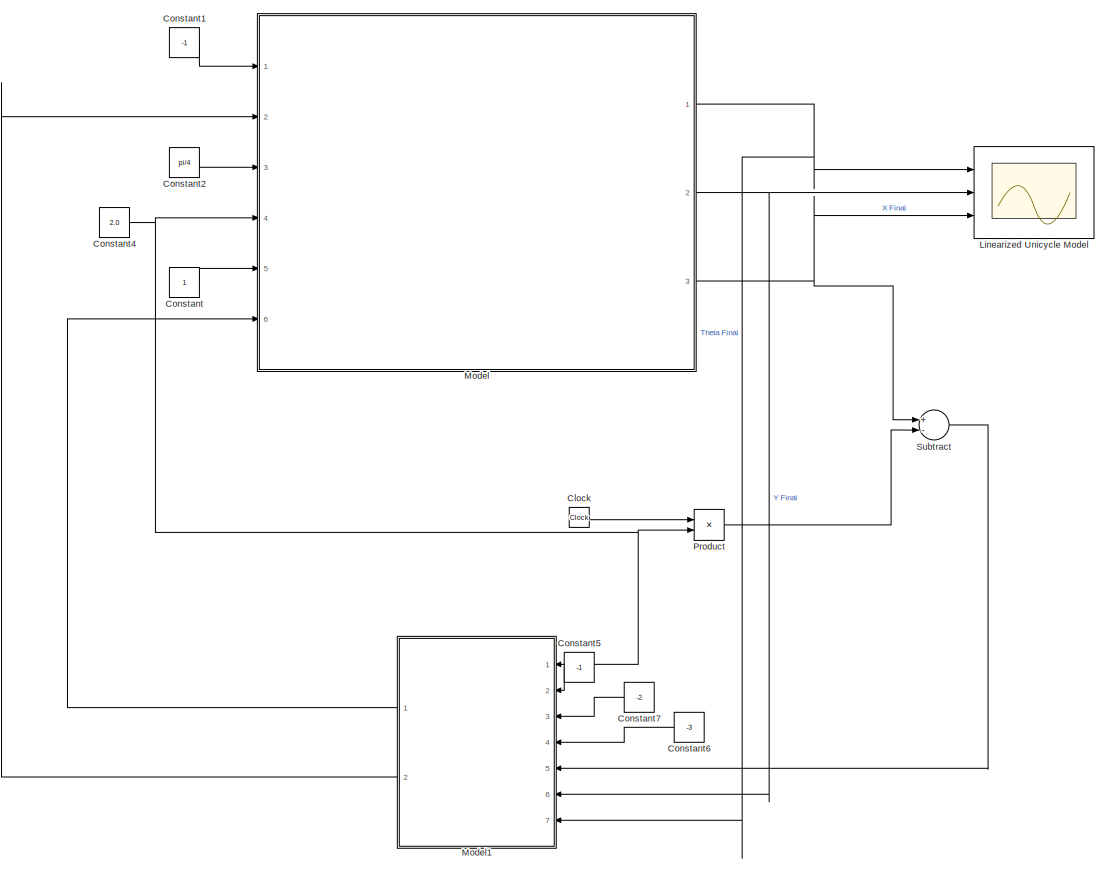
[diagram: root canvas - part 1/2, full width, top band]
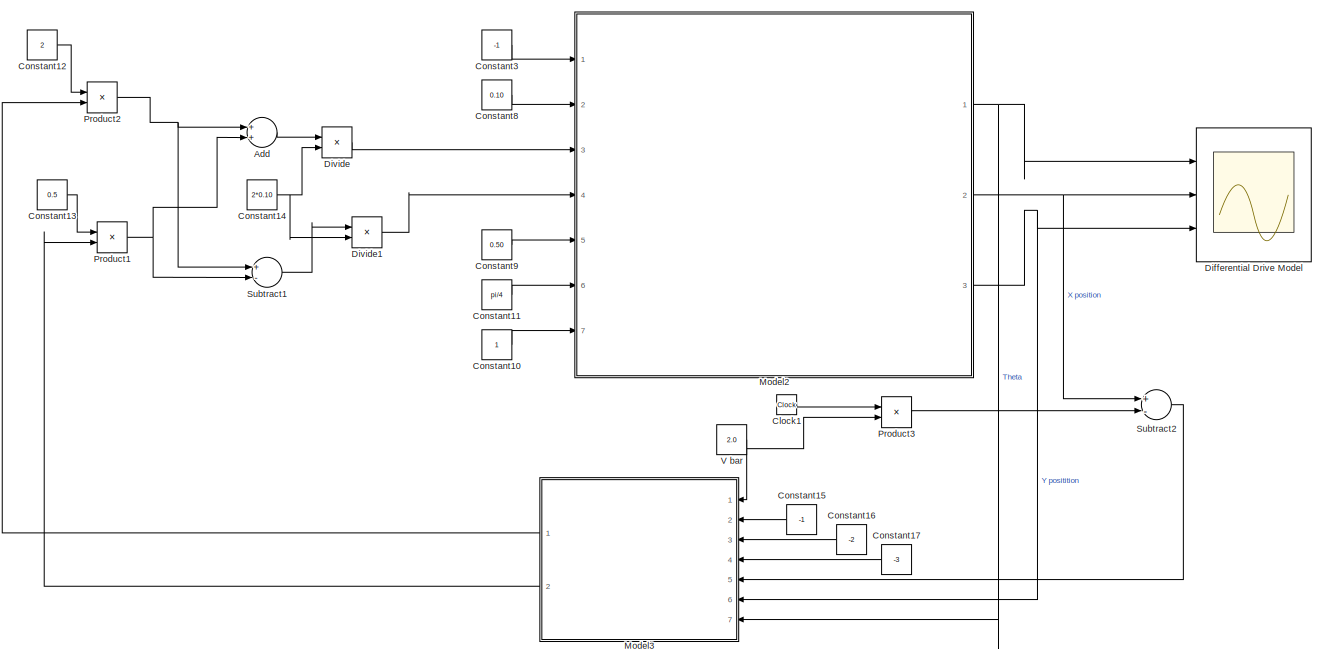
[diagram: root canvas - part 2/2, full width, bottom band]
MODEL slx_b41abf02a254
KIND model
CONFIG AbsTol = auto
CONFIG EnableMultiTasking = off
CONFIG FixedStep = auto
CONFIG MaxStep = auto
CONFIG MinStep = auto
CONFIG RelTol = 1e-3
CONFIG SampleTimeConstraint = Unconstrained
CONFIG Solver = VariableStepAuto
CONFIG SolverName = VariableStepAuto
CONFIG StartTime = 0.0
CONFIG StopTime = 10.0
BLOCK [Sum] Add
  InputSameDT = off
  OutDataTypeStr = Inherit: Inherit via internal rule
  Ports = [2, 1]
  SaturateOnIntegerOverflow = off
BLOCK [Clock] Clock
BLOCK [Clock] Clock1
BLOCK [Constant] Constant
BLOCK [Constant] Constant1
  Value = -1
BLOCK [Constant] Constant10
BLOCK [Constant] Constant11
  Value = pi/4
BLOCK [Constant] Constant12
  Value = 2
BLOCK [Constant] Constant13
  Value = 0.5
BLOCK [Constant] Constant14
  Value = 2*0.10
BLOCK [Constant] Constant15
  Value = -1
BLOCK [Constant] Constant16
  Value = -2
BLOCK [Constant] Constant17
  Value = -3
BLOCK [Constant] Constant2
  Value = pi/4
BLOCK [Constant] Constant3
  Value = -1
BLOCK [Constant] Constant4
  Value = 2.0
BLOCK [Constant] Constant5
  Value = -1
BLOCK [Constant] Constant6
  Value = -3
BLOCK [Constant] Constant7
  Value = -2
BLOCK [Constant] Constant8
  Value = 0.10
BLOCK [Constant] Constant9
  Value = 0.50
BLOCK [Scope] Differential Drive Model 
  NumInputPorts = 3
  Ports = [3]
  ScopeSpecificationString = Simulink.scopes.TimeScopeBlockCfg('CurrentConfiguration', extmgr.ConfigurationSet(extmgr.Configuration('Core','General UI',true),extmgr.Configuration('Core','Source UI',true),extmgr.Configuration('Sources','WiredSimulink',true,'DataLoggingVariableName','ScopeData1'),extmgr.Configuration('Visuals','Time Domain',true,'SerializedDisplays',{struct('MinYLimReal','-3.62499','MaxYLimReal','22.62491','YLa...<+1475ch>
BLOCK [Product] Divide
  InputSameDT = off
  Inputs = */
  OutDataTypeStr = Inherit: Inherit via internal rule
  Ports = [2, 1]
  RndMeth = Floor
  SaturateOnIntegerOverflow = off
BLOCK [Product] Divide1
  InputSameDT = off
  Inputs = */
  OutDataTypeStr = Inherit: Inherit via internal rule
  Ports = [2, 1]
  RndMeth = Floor
  SaturateOnIntegerOverflow = off
BLOCK [Scope] Linearized Unicycle Model 
  NumInputPorts = 3
  Ports = [3]
  ScopeSpecificationString = Simulink.scopes.TimeScopeBlockCfg('CurrentConfiguration', extmgr.ConfigurationSet(extmgr.Configuration('Core','General UI',true),extmgr.Configuration('Core','Source UI',true),extmgr.Configuration('Sources','WiredSimulink',true),extmgr.Configuration('Visuals','Time Domain',true,'SerializedDisplays',{struct('MinYLimReal','-3.62499','MaxYLimReal','22.62495','YLabelReal','','MinYLimMag','0.00000','Max...<+1432ch>
BLOCK [ModelReference] Model
  ModelNameDialog = Linearized_Unicycle_dynamics.slx
  ModelReferenceVersion = 1.1
  Ports = [6, 3]
  Variant = off
BLOCK [ModelReference] Model1
  ModelNameDialog = Linearized_controller.slx
  ModelReferenceVersion = 1.1
  Ports = [7, 2]
  Variant = off
BLOCK [ModelReference] Model2
  ModelNameDialog = Differential_Drive_Robot_Dynamics.slx
  ModelReferenceVersion = 1.3
  Ports = [7, 3]
  Variant = off
BLOCK [ModelReference] Model3
  ModelNameDialog = Linearized_controller.slx
  ModelReferenceVersion = 1.1
  Ports = [7, 2]
  Variant = off
BLOCK [Product] Product
  InputSameDT = off
  OutDataTypeStr = Inherit: Inherit via internal rule
  Ports = [2, 1]
  RndMeth = Floor
  SaturateOnIntegerOverflow = off
BLOCK [Product] Product1
  InputSameDT = off
  OutDataTypeStr = Inherit: Inherit via internal rule
  Ports = [2, 1]
  RndMeth = Floor
  SaturateOnIntegerOverflow = off
BLOCK [Product] Product2
  InputSameDT = off
  OutDataTypeStr = Inherit: Inherit via internal rule
  Ports = [2, 1]
  RndMeth = Floor
  SaturateOnIntegerOverflow = off
BLOCK [Product] Product3
  InputSameDT = off
  OutDataTypeStr = Inherit: Inherit via internal rule
  Ports = [2, 1]
  RndMeth = Floor
  SaturateOnIntegerOverflow = off
BLOCK [Sum] Subtract
  InputSameDT = off
  Inputs = +-
  OutDataTypeStr = Inherit: Inherit via internal rule
  Ports = [2, 1]
  SaturateOnIntegerOverflow = off
BLOCK [Sum] Subtract1
  InputSameDT = off
  Inputs = +-
  OutDataTypeStr = Inherit: Inherit via internal rule
  Ports = [2, 1]
  SaturateOnIntegerOverflow = off
BLOCK [Sum] Subtract2
  InputSameDT = off
  Inputs = +-
  OutDataTypeStr = Inherit: Inherit via internal rule
  Ports = [2, 1]
  SaturateOnIntegerOverflow = off
BLOCK [Constant] V bar 
  Value = 2.0
LINE Add:1 -> Divide:1
LINE Clock1:1 -> Product3:1
LINE Clock:1 -> Product:1
LINE Constant10:1 -> Model2:7
LINE Constant11:1 -> Model2:6
LINE Constant12:1 -> Product2:1
LINE Constant13:1 -> Product1:1
NET Constant14:1 -> Divide1:2, Divide:2
LINE Constant15:1 -> Model3:2
LINE Constant16:1 -> Model3:3
LINE Constant17:1 -> Model3:4
LINE Constant1:1 -> Model:1
LINE Constant2:1 -> Model:3
LINE Constant3:1 -> Model2:1
NET Constant4:1 -> Model1:1, Model:4, Product:2
LINE Constant5:1 -> Model1:2
LINE Constant6:1 -> Model1:4
LINE Constant7:1 -> Model1:3
LINE Constant8:1 -> Model2:2
LINE Constant9:1 -> Model2:5
LINE Constant:1 -> Model:5
LINE Divide1:1 -> Model2:4
LINE Divide:1 -> Model2:3
LINE Model1:1 -> Model:6
LINE Model1:2 -> Model:2
NET Model2:1 -> Differential Drive Model :1, Model3:7
NET Model2:2 -> Differential Drive Model :2, Subtract2:1
NET Model2:3 -> Differential Drive Model :3, Model3:6
LINE Model3:1 -> Product2:2
LINE Model3:2 -> Product1:2
NET Model:1 -> Linearized Unicycle Model :1, Model1:7
NET Model:2 -> Linearized Unicycle Model :2, Model1:6
NET Model:3 -> Linearized Unicycle Model :3, Subtract:1
NET Product1:1 -> Add:2, Subtract1:2
NET Product2:1 -> Add:1, Subtract1:1
LINE Product3:1 -> Subtract2:2
LINE Product:1 -> Subtract:2
LINE Subtract1:1 -> Divide1:1
LINE Subtract2:1 -> Model3:5
LINE Subtract:1 -> Model1:5
NET V bar :1 -> Model3:1, Product3:2
note: NET lines group one-source signal fan-out (src -> all destinations, sorted); 1:1 wires keep LINE
